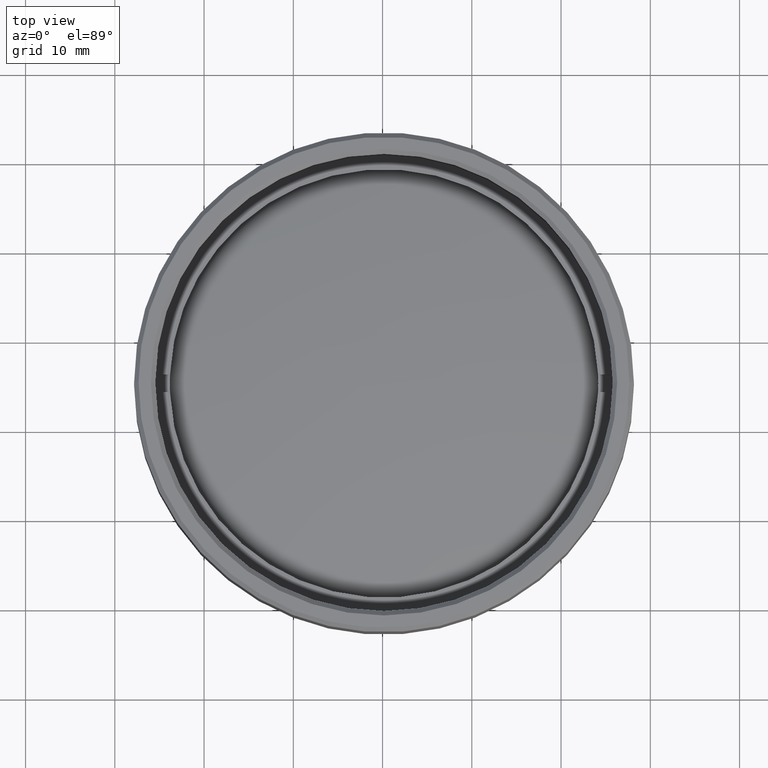
[diagram: clean part render]
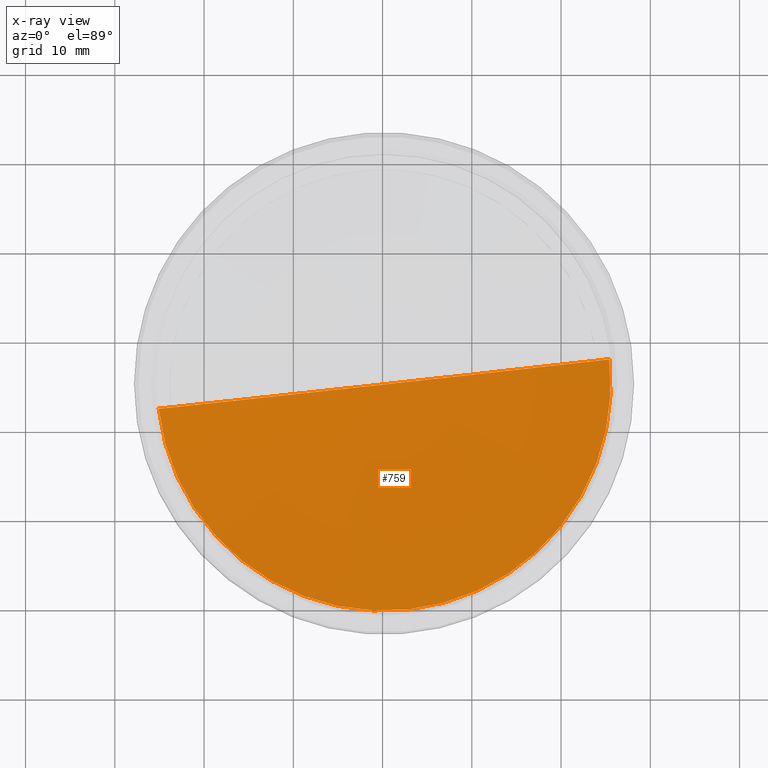
[diagram: x-ray — body ghosted, one internal face saturated and labeled with its STEP entity id]
A machine part, top view, then the same camera in x-ray: the body is ghosted and one INTERNAL B-rep face — a face not visible from any outside direction — is saturated and labeled: STEP entity #759.
In plain terms, the highlighted spherical surface has radius 134 mm.
Its self-contained STEP definition (entity closure, byte-faithful):
#7 = FACE_OUTER_BOUND ( 'NONE', #879, .T. ) ;
#48 = CIRCLE ( 'NONE', #1732, 134.0000000000000000 ) ;
#158 = DIRECTION ( 'NONE',  ( -0.000000000000000000, -0.000000000000000000, -1.000000000000000000 ) ) ;
#361 = AXIS2_PLACEMENT_3D ( 'NONE', #1645, #158, #1080 ) ;
#374 = CARTESIAN_POINT ( 'NONE',  ( 0.000000000000000000, 0.000000000000000000, -3.570665423566239838 ) ) ;
#415 = CARTESIAN_POINT ( 'NONE',  ( 25.39999999999999858, -3.110602869834270160E-15, -3.570665423566239838 ) ) ;
#420 = DIRECTION ( 'NONE',  ( 0.000000000000000000, 1.000000000000000000, 0.000000000000000000 ) ) ;
#533 = CARTESIAN_POINT ( 'NONE',  ( 0.000000000000000000, 0.000000000000000000, 128.0000000000000000 ) ) ;
#552 = SPHERICAL_SURFACE ( 'NONE', #361, 134.0000000000000000 ) ;
#557 = AXIS2_PLACEMENT_3D ( 'NONE', #374, #914, #645 ) ;
#627 = ORIENTED_EDGE ( 'NONE', *, *, #767, .T. ) ;
#645 = DIRECTION ( 'NONE',  ( 1.000000000000000000, 0.000000000000000000, 0.000000000000000000 ) ) ;
#759 = ADVANCED_FACE ( 'NONE', ( #7 ), #552, .F. ) ;
#767 = EDGE_CURVE ( 'NONE', #1133, #1484, #48, .T. ) ;
#879 = EDGE_LOOP ( 'NONE', ( #1666, #627 ) ) ;
#914 = DIRECTION ( 'NONE',  ( 0.000000000000000000, 0.000000000000000000, 1.000000000000000000 ) ) ;
#1080 = DIRECTION ( 'NONE',  ( -1.000000000000000000, 0.000000000000000000, 0.000000000000000000 ) ) ;
#1133 = VERTEX_POINT ( 'NONE', #415 ) ;
#1326 = CARTESIAN_POINT ( 'NONE',  ( -25.39999999999999858, 0.000000000000000000, -3.570665423566239838 ) ) ;
#1351 = DIRECTION ( 'NONE',  ( 0.000000000000000000, 0.000000000000000000, 1.000000000000000000 ) ) ;
#1484 = VERTEX_POINT ( 'NONE', #1326 ) ;
#1495 = EDGE_CURVE ( 'NONE', #1484, #1133, #1587, .T. ) ;
#1587 = CIRCLE ( 'NONE', #557, 25.39999999999999858 ) ;
#1645 = CARTESIAN_POINT ( 'NONE',  ( 0.000000000000000000, 0.000000000000000000, 128.0000000000000000 ) ) ;
#1666 = ORIENTED_EDGE ( 'NONE', *, *, #1495, .T. ) ;
#1732 = AXIS2_PLACEMENT_3D ( 'NONE', #533, #420, #1351 ) ;